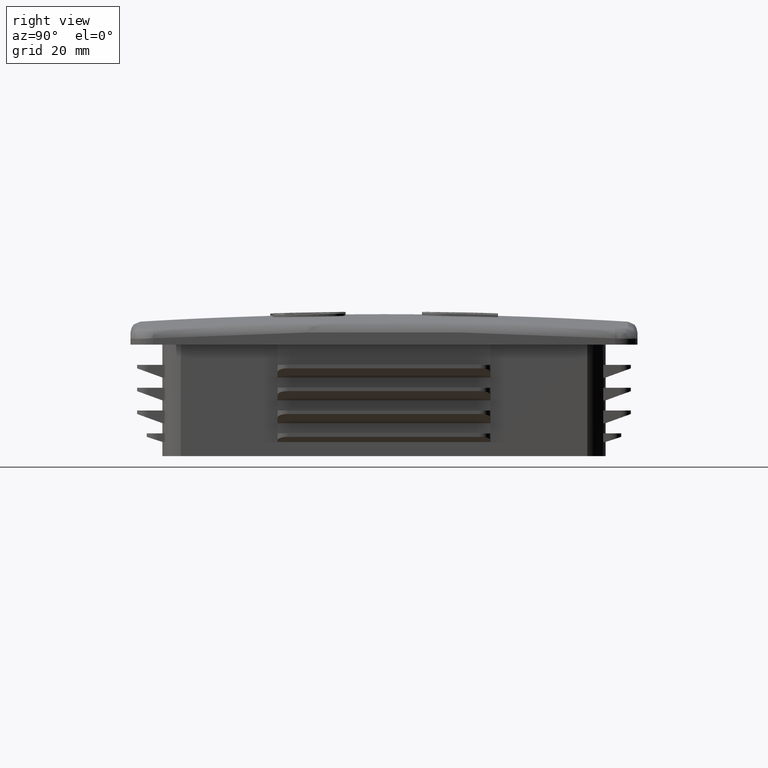
[diagram: clean part render]
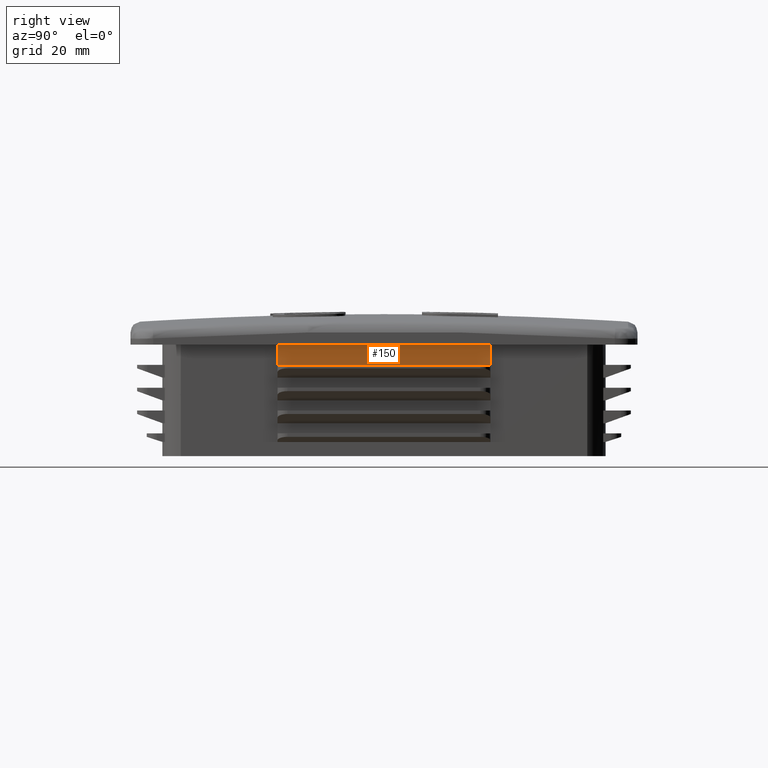
[diagram: same view with one face highlighted and labeled with its STEP entity id]
A machine part, right view. The second image highlights one B-rep face of the part: STEP entity #150.
In plain terms, the highlighted planar face has unit normal (1, 0, 0).
Its self-contained STEP definition (entity closure, byte-faithful):
#150 = ADVANCED_FACE( '', ( #480 ), #481, .T. );
#480 = FACE_OUTER_BOUND( '', #2822, .T. );
#481 = PLANE( '', #2823 );
#2822 = EDGE_LOOP( '', ( #3967, #3968, #3969, #3970 ) );
#2823 = AXIS2_PLACEMENT_3D( '', #3971, #3972, #3973 );
#3967 = ORIENTED_EDGE( '', *, *, #5560, .F. );
#3968 = ORIENTED_EDGE( '', *, *, #5671, .T. );
#3969 = ORIENTED_EDGE( '', *, *, #5672, .T. );
#3970 = ORIENTED_EDGE( '', *, *, #5673, .F. );
#3971 = CARTESIAN_POINT( '', ( 43.7000000000000, -37.7000000000000, -22.0000000000000 ) );
#3972 = DIRECTION( '', ( 1.00000000000000, 0.000000000000000, 0.000000000000000 ) );
#3973 = DIRECTION( '', ( 0.000000000000000, -1.00000000000000, 0.000000000000000 ) );
#5560 = EDGE_CURVE( '', #6328, #6330, #6331, .T. );
#5671 = EDGE_CURVE( '', #6328, #6513, #6514, .T. );
#5672 = EDGE_CURVE( '', #6513, #6515, #6516, .T. );
#5673 = EDGE_CURVE( '', #6330, #6515, #6517, .T. );
#6328 = VERTEX_POINT( '', #8561 );
#6330 = VERTEX_POINT( '', #8564 );
#6331 = LINE( '', #8565, #8566 );
#6513 = VERTEX_POINT( '', #9256 );
#6514 = LINE( '', #9257, #9258 );
#6515 = VERTEX_POINT( '', #9259 );
#6516 = LINE( '', #9260, #9261 );
#6517 = LINE( '', #9262, #9263 );
#8561 = CARTESIAN_POINT( '', ( 43.7000000000000, -21.0000000000000, 0.000000000000000 ) );
#8564 = CARTESIAN_POINT( '', ( 43.7000000000000, 21.0000000000000, 0.000000000000000 ) );
#8565 = CARTESIAN_POINT( '', ( 43.7000000000000, -37.7000000000000, 0.000000000000000 ) );
#8566 = VECTOR( '', #10773, 1000.00000000000 );
#9256 = CARTESIAN_POINT( '', ( 43.7000000000000, -21.0000000000000, -4.00000000000000 ) );
#9257 = CARTESIAN_POINT( '', ( 43.7000000000000, -21.0000000000000, 0.000000000000000 ) );
#9258 = VECTOR( '', #10858, 1000.00000000000 );
#9259 = CARTESIAN_POINT( '', ( 43.7000000000000, 21.0000000000000, -4.00000000000001 ) );
#9260 = CARTESIAN_POINT( '', ( 43.7000000000000, -37.7000000000000, -4.00000000000000 ) );
#9261 = VECTOR( '', #10859, 1000.00000000000 );
#9262 = CARTESIAN_POINT( '', ( 43.7000000000000, 21.0000000000000, 0.000000000000000 ) );
#9263 = VECTOR( '', #10860, 1000.00000000000 );
#10773 = DIRECTION( '', ( 0.000000000000000, 1.00000000000000, 0.000000000000000 ) );
#10858 = DIRECTION( '', ( 0.000000000000000, 0.000000000000000, -1.00000000000000 ) );
#10859 = DIRECTION( '', ( 0.000000000000000, 1.00000000000000, -6.12303176911190E-017 ) );
#10860 = DIRECTION( '', ( 0.000000000000000, 0.000000000000000, -1.00000000000000 ) );